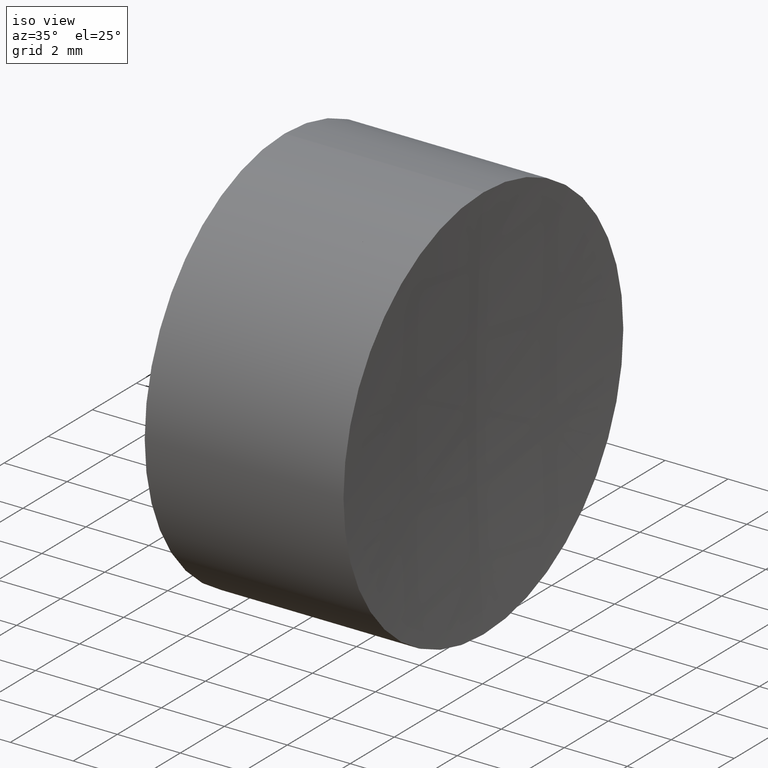
[diagram: clean part render]
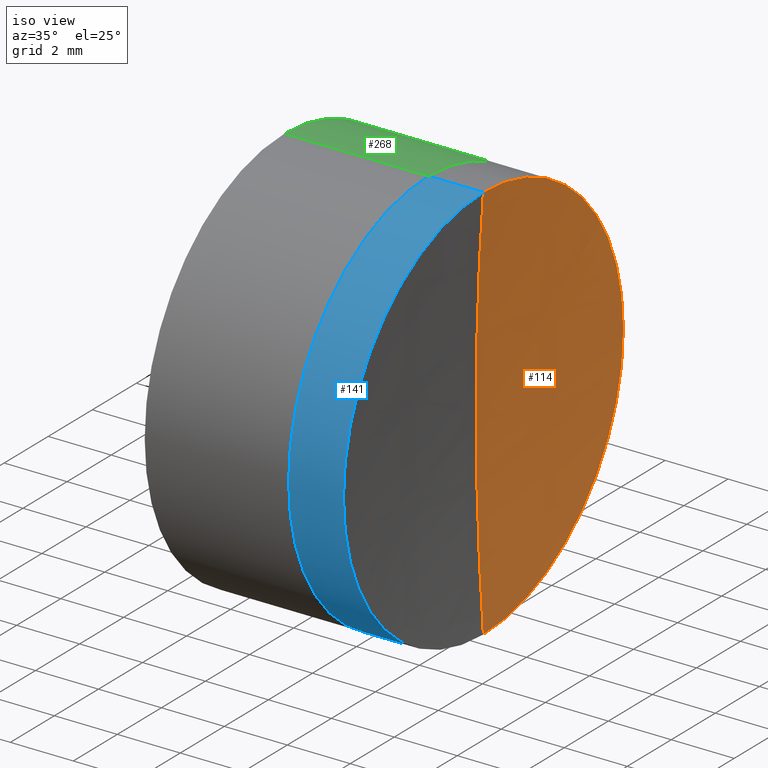
[diagram: same view with three faces highlighted in distinct colors, each labeled with its STEP entity id]
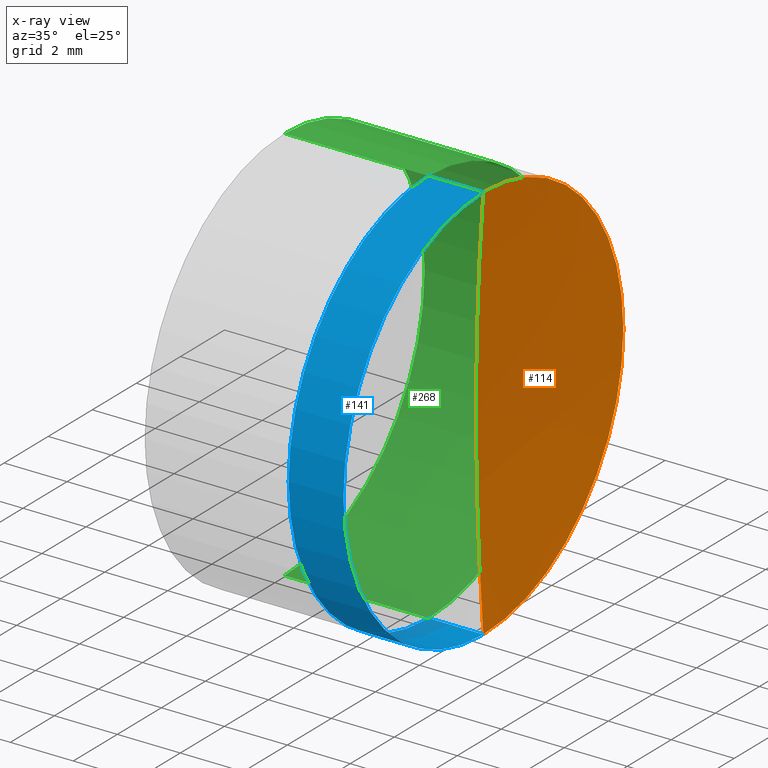
[diagram: x-ray of the same camera — body ghosted, the three highlighted faces saturated]
A machine part, iso view with three faces highlighted in distinct colors.
The next image is the same camera in x-ray (body ghosted, the three faces saturated) — at least one of them is partly hidden behind the body in this view.
Their STEP definitions:

[orange] entity #114 — the highlighted spherical surface has radius 87.9 mm.
#16 = CIRCLE ( 'NONE', #292, 6.349999999999998800 ) ;
#19 = AXIS2_PLACEMENT_3D ( 'NONE', #266, #180, #176 ) ;
#21 = ORIENTED_EDGE ( 'NONE', *, *, #131, .F. ) ;
#45 = DIRECTION ( 'NONE',  ( 0.0000000000000000000, 0.0000000000000000000, -1.000000000000000000 ) ) ;
#58 = ORIENTED_EDGE ( 'NONE', *, *, #201, .T. ) ;
#60 = CARTESIAN_POINT ( 'NONE',  ( 234.6302652343706800, 0.0000000000000000000, 6.349999999999998800 ) ) ;
#95 = CARTESIAN_POINT ( 'NONE',  ( 322.3005994415584600, 0.0000000000000000000, 0.0000000000000000000 ) ) ;
#99 = CARTESIAN_POINT ( 'NONE',  ( 234.4005994415584800, 0.0000000000000000000, -5.382322682252618100E-015 ) ) ;
#100 = EDGE_CURVE ( 'NONE', #136, #220, #16, .T. ) ;
#112 = DIRECTION ( 'NONE',  ( 0.0000000000000000000, 1.224646799147353200E-016, -1.000000000000000000 ) ) ;
#113 = CIRCLE ( 'NONE', #125, 87.90000000000000600 ) ;
#114 = ADVANCED_FACE ( 'NONE', ( #261 ), #275, .F. ) ;
#121 = CARTESIAN_POINT ( 'NONE',  ( 234.6302652343706800, 7.776507174585690200E-016, -6.349999999999997900 ) ) ;
#125 = AXIS2_PLACEMENT_3D ( 'NONE', #195, #290, #112 ) ;
#131 = EDGE_CURVE ( 'NONE', #220, #224, #293, .T. ) ;
#136 = VERTEX_POINT ( 'NONE', #60 ) ;
#148 = DIRECTION ( 'NONE',  ( 0.0000000000000000000, 0.0000000000000000000, 1.000000000000000000 ) ) ;
#171 = CARTESIAN_POINT ( 'NONE',  ( 234.6302652343706800, 0.0000000000000000000, 0.0000000000000000000 ) ) ;
#176 = DIRECTION ( 'NONE',  ( 0.0000000000000000000, 0.0000000000000000000, 1.000000000000000000 ) ) ;
#180 = DIRECTION ( 'NONE',  ( 0.0000000000000000000, 1.000000000000000000, -0.0000000000000000000 ) ) ;
#193 = EDGE_LOOP ( 'NONE', ( #218, #58, #21 ) ) ;
#195 = CARTESIAN_POINT ( 'NONE',  ( 322.3005994415584600, 0.0000000000000000000, 0.0000000000000000000 ) ) ;
#201 = EDGE_CURVE ( 'NONE', #136, #224, #113, .T. ) ;
#218 = ORIENTED_EDGE ( 'NONE', *, *, #100, .F. ) ;
#220 = VERTEX_POINT ( 'NONE', #121 ) ;
#224 = VERTEX_POINT ( 'NONE', #99 ) ;
#261 = FACE_OUTER_BOUND ( 'NONE', #193, .T. ) ;
#266 = CARTESIAN_POINT ( 'NONE',  ( 322.3005994415584600, 0.0000000000000000000, 0.0000000000000000000 ) ) ;
#275 = SPHERICAL_SURFACE ( 'NONE', #346, 87.90000000000000600 ) ;
#290 = DIRECTION ( 'NONE',  ( 0.0000000000000000000, -1.000000000000000000, -1.224646799147353200E-016 ) ) ;
#292 = AXIS2_PLACEMENT_3D ( 'NONE', #171, #332, #148 ) ;
#293 = CIRCLE ( 'NONE', #19, 87.90000000000000600 ) ;
#326 = DIRECTION ( 'NONE',  ( -0.0000000000000000000, -1.000000000000000000, -0.0000000000000000000 ) ) ;
#332 = DIRECTION ( 'NONE',  ( -1.000000000000000000, -0.0000000000000000000, -0.0000000000000000000 ) ) ;
#346 = AXIS2_PLACEMENT_3D ( 'NONE', #95, #326, #45 ) ;

[blue] entity #141 — the highlighted cylindrical surface (partial cylindrical patch) has radius 6.35 mm, axis along (-1, -0, -0).
#1 = LINE ( 'NONE', #183, #221 ) ;
#20 = CARTESIAN_POINT ( 'NONE',  ( 228.3139323085608800, 0.0000000000000000000, 0.0000000000000000000 ) ) ;
#30 = CARTESIAN_POINT ( 'NONE',  ( 232.8878128593976600, 0.0000000000000000000, 0.0000000000000000000 ) ) ;
#35 = CARTESIAN_POINT ( 'NONE',  ( 228.3139323085608800, 7.776507174585687200E-016, -6.349999999999995200 ) ) ;
#37 = EDGE_CURVE ( 'NONE', #220, #242, #163, .T. ) ;
#48 = DIRECTION ( 'NONE',  ( -1.000000000000000000, -0.0000000000000000000, -0.0000000000000000000 ) ) ;
#57 = EDGE_CURVE ( 'NONE', #136, #338, #1, .T. ) ;
#60 = CARTESIAN_POINT ( 'NONE',  ( 234.6302652343706800, 0.0000000000000000000, 6.349999999999998800 ) ) ;
#74 = VECTOR ( 'NONE', #76, 1000.000000000000000 ) ;
#76 = DIRECTION ( 'NONE',  ( -1.000000000000000000, -0.0000000000000000000, -0.0000000000000000000 ) ) ;
#121 = CARTESIAN_POINT ( 'NONE',  ( 234.6302652343706800, 7.776507174585690200E-016, -6.349999999999997900 ) ) ;
#132 = CIRCLE ( 'NONE', #314, 6.349999999999998800 ) ;
#133 = ORIENTED_EDGE ( 'NONE', *, *, #215, .T. ) ;
#136 = VERTEX_POINT ( 'NONE', #60 ) ;
#138 = AXIS2_PLACEMENT_3D ( 'NONE', #30, #282, #150 ) ;
#141 = ADVANCED_FACE ( 'NONE', ( #237 ), #160, .T. ) ;
#150 = DIRECTION ( 'NONE',  ( 0.0000000000000000000, 0.0000000000000000000, 1.000000000000000000 ) ) ;
#160 = CYLINDRICAL_SURFACE ( 'NONE', #254, 6.349999999999995200 ) ;
#163 = LINE ( 'NONE', #35, #74 ) ;
#177 = EDGE_LOOP ( 'NONE', ( #339, #133, #291, #256 ) ) ;
#183 = CARTESIAN_POINT ( 'NONE',  ( 228.3139323085608800, 0.0000000000000000000, 6.349999999999995200 ) ) ;
#215 = EDGE_CURVE ( 'NONE', #220, #136, #132, .T. ) ;
#220 = VERTEX_POINT ( 'NONE', #121 ) ;
#221 = VECTOR ( 'NONE', #284, 1000.000000000000000 ) ;
#227 = DIRECTION ( 'NONE',  ( 0.0000000000000000000, 0.0000000000000000000, 1.000000000000000000 ) ) ;
#237 = FACE_OUTER_BOUND ( 'NONE', #177, .T. ) ;
#242 = VERTEX_POINT ( 'NONE', #296 ) ;
#254 = AXIS2_PLACEMENT_3D ( 'NONE', #20, #48, #227 ) ;
#255 = CARTESIAN_POINT ( 'NONE',  ( 234.6302652343706800, 0.0000000000000000000, 0.0000000000000000000 ) ) ;
#256 = ORIENTED_EDGE ( 'NONE', *, *, #301, .F. ) ;
#262 = CIRCLE ( 'NONE', #138, 6.349999999999991700 ) ;
#270 = DIRECTION ( 'NONE',  ( -1.000000000000000000, -0.0000000000000000000, -0.0000000000000000000 ) ) ;
#282 = DIRECTION ( 'NONE',  ( -1.000000000000000000, -0.0000000000000000000, -0.0000000000000000000 ) ) ;
#284 = DIRECTION ( 'NONE',  ( -1.000000000000000000, -0.0000000000000000000, -0.0000000000000000000 ) ) ;
#291 = ORIENTED_EDGE ( 'NONE', *, *, #57, .T. ) ;
#296 = CARTESIAN_POINT ( 'NONE',  ( 232.8878128593976600, 7.776507174585682300E-016, -6.349999999999990800 ) ) ;
#301 = EDGE_CURVE ( 'NONE', #242, #338, #262, .T. ) ;
#303 = DIRECTION ( 'NONE',  ( 0.0000000000000000000, 0.0000000000000000000, 1.000000000000000000 ) ) ;
#314 = AXIS2_PLACEMENT_3D ( 'NONE', #255, #270, #303 ) ;
#328 = CARTESIAN_POINT ( 'NONE',  ( 232.8878128593976600, 0.0000000000000000000, 6.349999999999990800 ) ) ;
#338 = VERTEX_POINT ( 'NONE', #328 ) ;
#339 = ORIENTED_EDGE ( 'NONE', *, *, #37, .F. ) ;

[green] entity #268 — the highlighted cylindrical surface (partial cylindrical patch) has radius 6.35 mm, axis along (-1, -0, 0).
#6 = ORIENTED_EDGE ( 'NONE', *, *, #38, .F. ) ;
#9 = DIRECTION ( 'NONE',  ( -1.000000000000000000, -0.0000000000000000000, 1.836970198721029700E-016 ) ) ;
#26 = AXIS2_PLACEMENT_3D ( 'NONE', #229, #199, #157 ) ;
#34 = CYLINDRICAL_SURFACE ( 'NONE', #89, 6.350000000000042300 ) ;
#38 = EDGE_CURVE ( 'NONE', #311, #126, #304, .T. ) ;
#44 = EDGE_CURVE ( 'NONE', #323, #139, #78, .T. ) ;
#50 = AXIS2_PLACEMENT_3D ( 'NONE', #140, #9, #306 ) ;
#53 = EDGE_LOOP ( 'NONE', ( #85, #208, #210, #6 ) ) ;
#54 = EDGE_CURVE ( 'NONE', #126, #139, #65, .T. ) ;
#65 = CIRCLE ( 'NONE', #26, 6.350000000000042300 ) ;
#78 = LINE ( 'NONE', #142, #343 ) ;
#81 = CARTESIAN_POINT ( 'NONE',  ( 232.8878128593976600, 0.0000000000000000000, 6.349999999999999600 ) ) ;
#85 = ORIENTED_EDGE ( 'NONE', *, *, #309, .T. ) ;
#88 = CARTESIAN_POINT ( 'NONE',  ( 228.3139323085608800, 0.0000000000000000000, 6.349999999999999600 ) ) ;
#89 = AXIS2_PLACEMENT_3D ( 'NONE', #166, #272, #207 ) ;
#104 = FACE_OUTER_BOUND ( 'NONE', #53, .T. ) ;
#126 = VERTEX_POINT ( 'NONE', #88 ) ;
#139 = VERTEX_POINT ( 'NONE', #337 ) ;
#140 = CARTESIAN_POINT ( 'NONE',  ( 232.8878128593976600, 0.0000000000000000000, -4.293070537659537300E-014 ) ) ;
#142 = CARTESIAN_POINT ( 'NONE',  ( -0.8160621761658051200, 7.776507174585744400E-016, -6.350000000000042300 ) ) ;
#146 = CARTESIAN_POINT ( 'NONE',  ( 232.8878128593976600, 7.776507174585744400E-016, -6.350000000000084900 ) ) ;
#157 = DIRECTION ( 'NONE',  ( 0.0000000000000000000, 0.0000000000000000000, 1.000000000000000000 ) ) ;
#166 = CARTESIAN_POINT ( 'NONE',  ( -0.8160621761658039000, 0.0000000000000000000, 0.0000000000000000000 ) ) ;
#197 = DIRECTION ( 'NONE',  ( -1.000000000000000000, -0.0000000000000000000, 1.836970198721029700E-016 ) ) ;
#199 = DIRECTION ( 'NONE',  ( -1.000000000000000000, -0.0000000000000000000, 1.836970198721029700E-016 ) ) ;
#207 = DIRECTION ( 'NONE',  ( 1.878145495644168500E-016, 0.0000000000000000000, 1.000000000000000000 ) ) ;
#208 = ORIENTED_EDGE ( 'NONE', *, *, #44, .T. ) ;
#210 = ORIENTED_EDGE ( 'NONE', *, *, #54, .F. ) ;
#229 = CARTESIAN_POINT ( 'NONE',  ( 228.3139323085608800, 0.0000000000000000000, -4.209049715015568400E-014 ) ) ;
#230 = CARTESIAN_POINT ( 'NONE',  ( -0.8160621761658027900, 0.0000000000000000000, 6.350000000000042300 ) ) ;
#268 = ADVANCED_FACE ( 'NONE', ( #104 ), #34, .T. ) ;
#272 = DIRECTION ( 'NONE',  ( -1.000000000000000000, -0.0000000000000000000, 1.836970198721029700E-016 ) ) ;
#277 = DIRECTION ( 'NONE',  ( -1.000000000000000000, -0.0000000000000000000, 1.836970198721029700E-016 ) ) ;
#304 = LINE ( 'NONE', #230, #334 ) ;
#306 = DIRECTION ( 'NONE',  ( 0.0000000000000000000, 0.0000000000000000000, 1.000000000000000000 ) ) ;
#309 = EDGE_CURVE ( 'NONE', #311, #323, #344, .T. ) ;
#311 = VERTEX_POINT ( 'NONE', #81 ) ;
#323 = VERTEX_POINT ( 'NONE', #146 ) ;
#334 = VECTOR ( 'NONE', #277, 1000.000000000000000 ) ;
#337 = CARTESIAN_POINT ( 'NONE',  ( 228.3139323085608800, 7.776507174585744400E-016, -6.350000000000044900 ) ) ;
#343 = VECTOR ( 'NONE', #197, 1000.000000000000000 ) ;
#344 = CIRCLE ( 'NONE', #50, 6.350000000000042300 ) ;